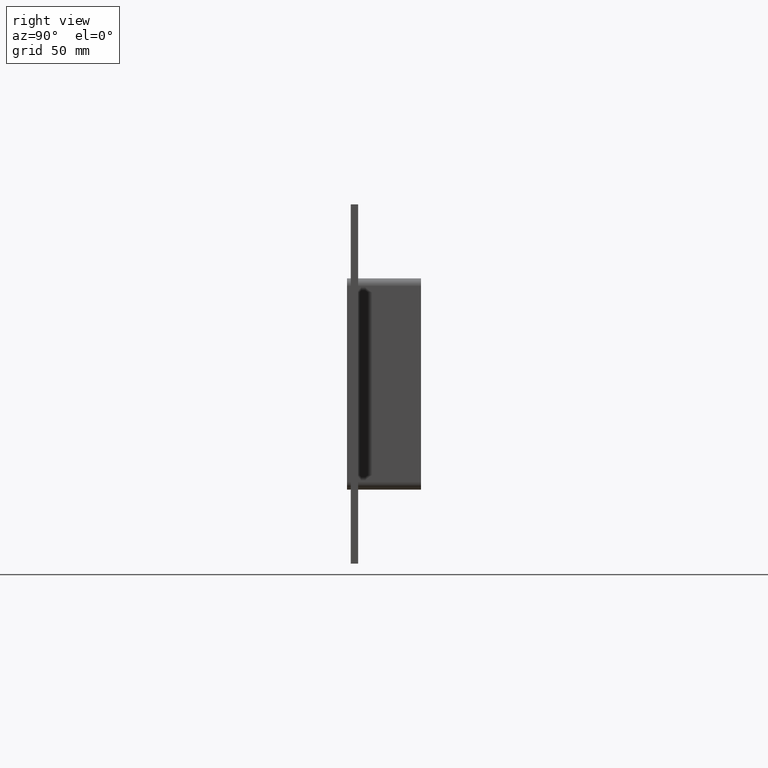
[diagram: clean part render]
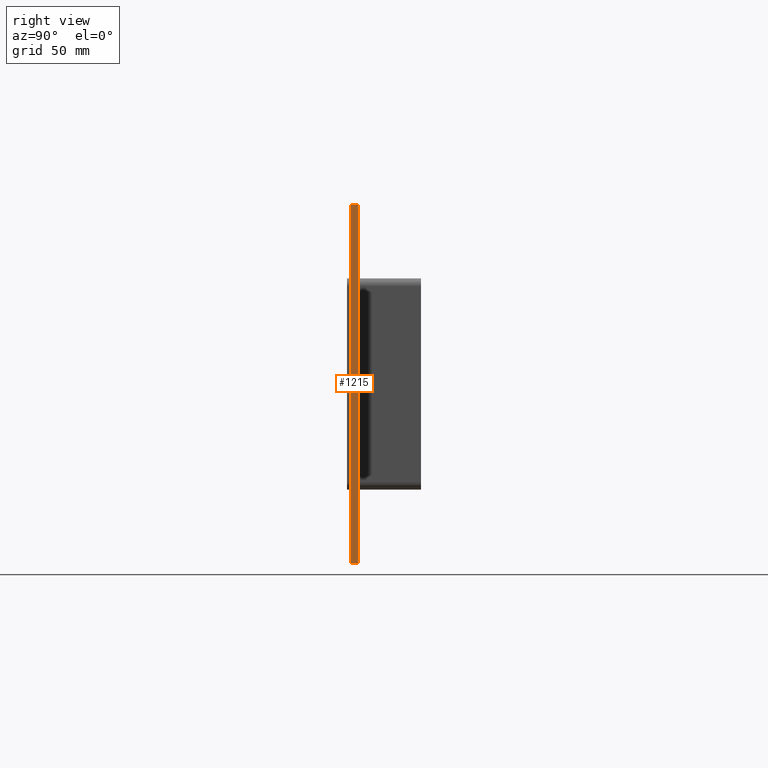
[diagram: same view with one face highlighted and labeled with its STEP entity id]
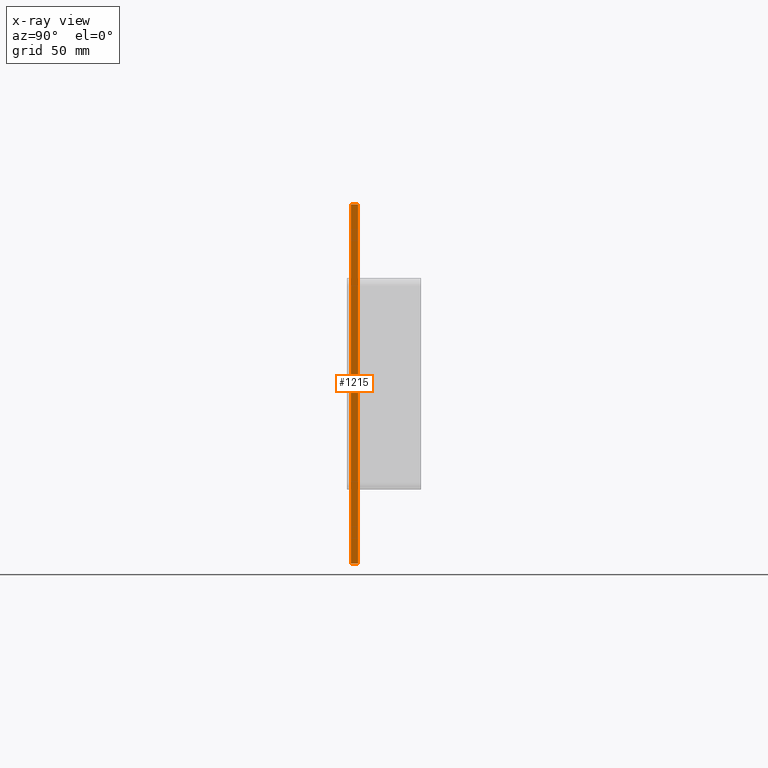
[diagram: x-ray of the same camera — body ghosted, the highlighted face saturated]
A machine part, right view. The second image highlights one B-rep face of the part: STEP entity #1215.
The next image is the same camera in x-ray: the body ghosted, the highlighted face saturated — about 0% of this face is hidden behind the body in this view.
In plain terms, the highlighted planar face has unit normal (1, 0, 0).
Its self-contained STEP definition (entity closure, byte-faithful):
#851=CARTESIAN_POINT('',(256.75000000000017,6.000000000000001,145.75));
#852=VERTEX_POINT('',#851);
#859=CARTESIAN_POINT('',(256.75000000000017,6.000000000000001,-145.74999999999997));
#860=VERTEX_POINT('',#859);
#861=CARTESIAN_POINT('',(256.75000000000011,6.000000000000001,145.75));
#862=DIRECTION('',(0.0,0.0,-1.0));
#863=VECTOR('',#862,291.5);
#864=LINE('',#861,#863);
#865=EDGE_CURVE('',#852,#860,#864,.T.);
#1009=CARTESIAN_POINT('',(256.75000000000011,0.0,145.75));
#1010=VERTEX_POINT('',#1009);
#1025=CARTESIAN_POINT('',(256.75000000000011,0.0,-145.75));
#1026=VERTEX_POINT('',#1025);
#1033=CARTESIAN_POINT('',(256.75000000000011,0.0,145.75));
#1034=DIRECTION('',(0.0,0.0,-1.0));
#1035=VECTOR('',#1034,291.5);
#1036=LINE('',#1033,#1035);
#1037=EDGE_CURVE('',#1010,#1026,#1036,.T.);
#1190=CARTESIAN_POINT('',(256.75000000000011,0.0,-145.75));
#1191=DIRECTION('',(0.0,1.0,0.0));
#1192=VECTOR('',#1191,6.000000000000001);
#1193=LINE('',#1190,#1192);
#1194=EDGE_CURVE('',#1026,#860,#1193,.T.);
#1199=CARTESIAN_POINT('',(256.75000000000011,0.0,145.75));
#1200=DIRECTION('',(1.0,0.0,0.0));
#1201=DIRECTION('',(0.0,0.0,-1.0));
#1202=AXIS2_PLACEMENT_3D('',#1199,#1200,#1201);
#1203=PLANE('',#1202);
#1204=ORIENTED_EDGE('',*,*,#1037,.T.);
#1205=ORIENTED_EDGE('',*,*,#1194,.T.);
#1206=ORIENTED_EDGE('',*,*,#865,.F.);
#1207=CARTESIAN_POINT('',(256.75000000000011,0.0,145.75));
#1208=DIRECTION('',(0.0,1.0,0.0));
#1209=VECTOR('',#1208,6.000000000000001);
#1210=LINE('',#1207,#1209);
#1211=EDGE_CURVE('',#1010,#852,#1210,.T.);
#1212=ORIENTED_EDGE('',*,*,#1211,.F.);
#1213=EDGE_LOOP('',(#1204,#1205,#1206,#1212));
#1214=FACE_OUTER_BOUND('',#1213,.T.);
#1215=ADVANCED_FACE('',(#1214),#1203,.T.);